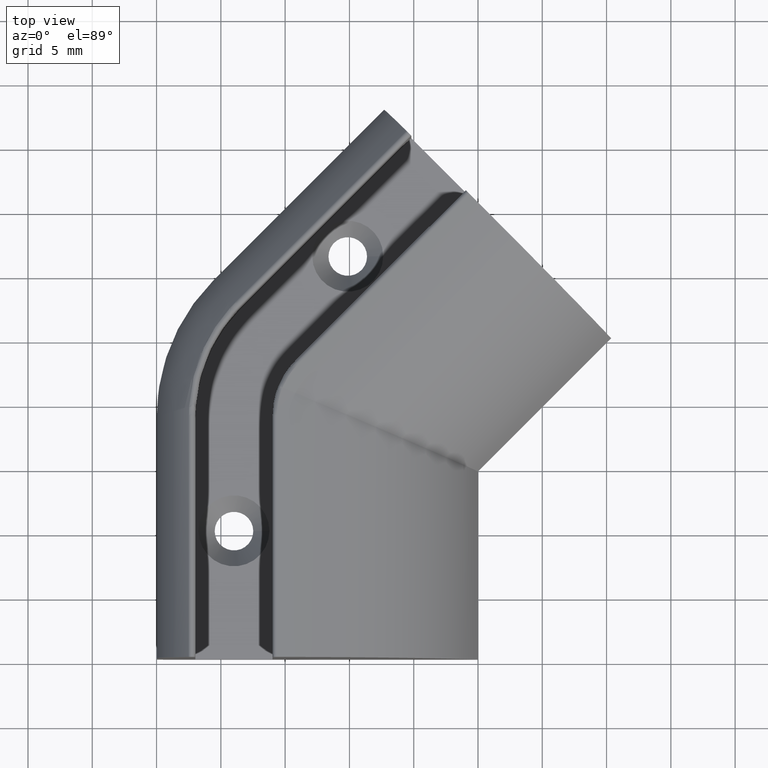
[diagram: clean part render]
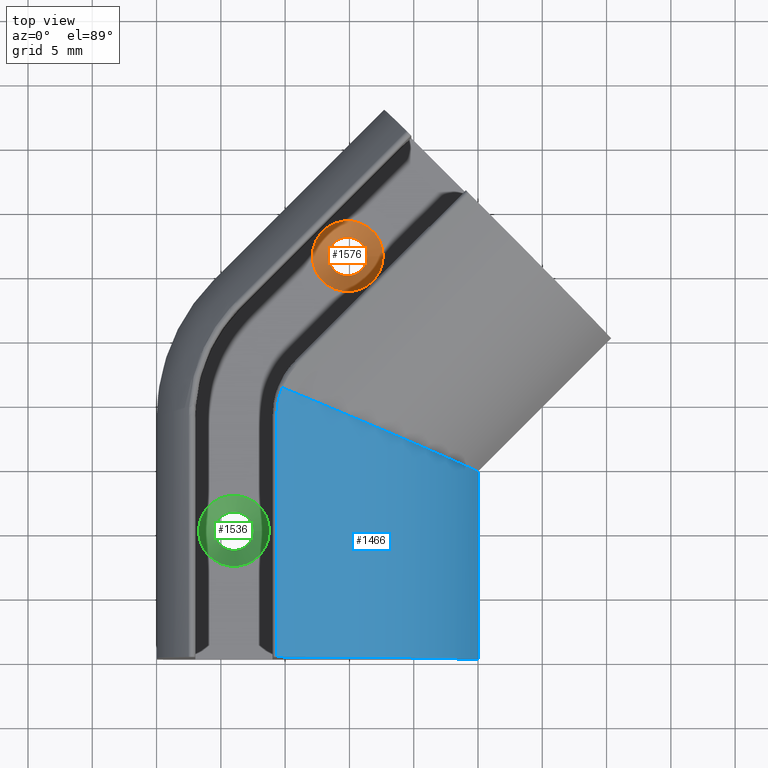
[diagram: same view with three faces highlighted in distinct colors, each labeled with its STEP entity id]
A machine part, top view with three faces highlighted in distinct colors.
Their STEP definitions:

[orange] entity #1576 — the highlighted face is a freeform B-spline surface patch.
#324=CARTESIAN_POINT('',(-11.629849421591217,16.716966149286378,-4.440892E-015));
#325=VERTEX_POINT('',#324);
#326=CARTESIAN_POINT('',(-8.629837421590736,16.716966149286378,-4.440892E-015));
#327=VERTEX_POINT('',#326);
#328=CARTESIAN_POINT('',(-10.129843421590977,16.716966149286378,-4.440892E-015));
#329=DIRECTION('',(0.0,0.0,-1.0));
#330=DIRECTION('',(1.0,0.0,0.0));
#331=AXIS2_PLACEMENT_3D('',#328,#329,#330);
#332=CIRCLE('',#331,1.500006000000241);
#333=EDGE_CURVE('',#325,#327,#332,.T.);
#335=CARTESIAN_POINT('',(-10.129843421590977,16.716966149286378,-4.440892E-015));
#336=DIRECTION('',(0.0,0.0,-1.0));
#337=DIRECTION('',(1.0,0.0,0.0));
#338=AXIS2_PLACEMENT_3D('',#335,#336,#337);
#339=CIRCLE('',#338,1.500006000000241);
#340=EDGE_CURVE('',#327,#325,#339,.T.);
#438=CARTESIAN_POINT('',(-7.371189233474411,16.716966149286378,1.499998499999820));
#439=VERTEX_POINT('',#438);
#440=CARTESIAN_POINT('',(-12.888497609707542,16.716966149286378,1.499998499999820));
#441=VERTEX_POINT('',#440);
#442=CARTESIAN_POINT('',(-10.129843421590977,16.716966149286378,1.499998499999820));
#443=DIRECTION('',(0.0,0.0,-1.0));
#444=DIRECTION('',(1.0,0.0,0.0));
#445=AXIS2_PLACEMENT_3D('',#442,#443,#444);
#446=CIRCLE('',#445,2.758654188116566);
#447=EDGE_CURVE('',#439,#441,#446,.T.);
#449=CARTESIAN_POINT('',(-10.129843421590977,16.716966149286378,1.499998499999820));
#450=DIRECTION('',(0.0,0.0,-1.0));
#451=DIRECTION('',(1.0,0.0,0.0));
#452=AXIS2_PLACEMENT_3D('',#449,#450,#451);
#453=CIRCLE('',#452,2.758654188116566);
#454=EDGE_CURVE('',#441,#439,#453,.T.);
#1537=CARTESIAN_POINT('',(-8.629837421601131,16.716966149286378,-1.239231E-011));
#1538=CARTESIAN_POINT('',(-8.629837421601131,15.216960149296533,-1.239231E-011));
#1539=CARTESIAN_POINT('',(-10.129843421590977,15.216960149296533,-1.239231E-011));
#1540=CARTESIAN_POINT('',(-11.629849421580822,15.216960149296533,-1.239231E-011));
#1541=CARTESIAN_POINT('',(-11.629849421580822,16.716966149286378,-1.239231E-011));
#1542=CARTESIAN_POINT('',(-11.629849421580822,18.216972149276224,-1.239231E-011));
#1543=CARTESIAN_POINT('',(-10.129843421590977,18.216972149276224,-1.239231E-011));
#1544=CARTESIAN_POINT('',(-8.629837421601131,18.216972149276224,-1.239231E-011));
#1545=CARTESIAN_POINT('',(-8.629837421601131,16.716966149286378,-1.239231E-011));
#1546=CARTESIAN_POINT('',(-7.371189233474411,16.716966149286378,1.499998499999820));
#1547=CARTESIAN_POINT('',(-7.371189233474411,13.958311961169811,1.499998499999820));
#1548=CARTESIAN_POINT('',(-10.129843421590977,13.958311961169812,1.499998499999820));
#1549=CARTESIAN_POINT('',(-12.888497609707544,13.958311961169811,1.499998499999820));
#1550=CARTESIAN_POINT('',(-12.888497609707542,16.716966149286378,1.499998499999820));
#1551=CARTESIAN_POINT('',(-12.888497609707544,19.475620337402944,1.499998499999820));
#1552=CARTESIAN_POINT('',(-10.129843421590977,19.475620337402944,1.499998499999820));
#1553=CARTESIAN_POINT('',(-7.371189233474411,19.475620337402944,1.499998499999820));
#1554=CARTESIAN_POINT('',(-7.371189233474411,16.716966149286378,1.499998499999820));
#1562=(BOUNDED_SURFACE()B_SPLINE_SURFACE(2,1,((#1537,#1546),(#1538,#1547),(#1539,#1548),(#1540,#1549),(#1541,#1550),(#1542,#1551),(#1543,#1552),(#1544,#1553),(#1545,#1554)),.UNSPECIFIED.,.T.,.F.,.U.)B_SPLINE_SURFACE_WITH_KNOTS((3,2,2,2,3),(2,2),(0.0,0.250000000000000,0.500000000000000,0.750000000000000,1.0),(-1.958108975903426,0.0),.UNSPECIFIED.)GEOMETRIC_REPRESENTATION_ITEM()RATIONAL_B_SPLINE_SURFACE(((1.0,1.0),(0.707106781186548,0.707106781186548),(1.0,1.0),(0.707106781186548,0.707106781186548),(1.0,1.0),(0.707106781186548,0.707106781186548),(1.0,1.0),(0.707106781186548,0.707106781186548),(1.0,1.0)))REPRESENTATION_ITEM('')SURFACE());
#1563=CARTESIAN_POINT('',(-8.629837421590736,16.716966149286378,-3.996803E-015));
#1564=DIRECTION('',(0.642787609686539,0.0,0.766044443118978));
#1565=VECTOR('',#1564,1.958108975887254);
#1566=LINE('',#1563,#1565);
#1567=EDGE_CURVE('',#327,#439,#1566,.T.);
#1568=ORIENTED_EDGE('',*,*,#1567,.T.);
#1569=ORIENTED_EDGE('',*,*,#454,.F.);
#1570=ORIENTED_EDGE('',*,*,#447,.F.);
#1571=ORIENTED_EDGE('',*,*,#1567,.F.);
#1572=ORIENTED_EDGE('',*,*,#340,.T.);
#1573=ORIENTED_EDGE('',*,*,#333,.T.);
#1574=EDGE_LOOP('',(#1568,#1569,#1570,#1571,#1572,#1573));
#1575=FACE_OUTER_BOUND('',#1574,.T.);
#1576=ADVANCED_FACE('',(#1575),#1562,.T.);

[blue] entity #1466 — the highlighted cylindrical surface (partial cylindrical patch) has radius 17.7 mm, axis along (0, -1, 0).
#280=CARTESIAN_POINT('',(0.0,0.0,0.0));
#281=VERTEX_POINT('',#280);
#288=CARTESIAN_POINT('',(0.0,-14.646994881391919,0.0));
#289=VERTEX_POINT('',#288);
#290=CARTESIAN_POINT('',(0.0,-14.646994881391919,0.0));
#291=DIRECTION('',(0.0,1.0,0.0));
#292=VECTOR('',#291,14.646994881391922);
#293=LINE('',#290,#292);
#294=EDGE_CURVE('',#289,#281,#293,.T.);
#1140=CARTESIAN_POINT('',(-15.219739060737368,6.304222334736963,12.612332084763196));
#1141=VERTEX_POINT('',#1140);
#1238=CARTESIAN_POINT('',(-15.656675014813700,4.133473932065613,12.650517677420133));
#1239=VERTEX_POINT('',#1238);
#1247=CARTESIAN_POINT('',(-15.656675014813700,4.133473932065613,12.650517677420133));
#1248=CARTESIAN_POINT('',(-15.656675014813700,4.523713902137473,12.650517677420133));
#1249=CARTESIAN_POINT('',(-15.578821543301302,5.266184799704121,12.644968636634871));
#1250=CARTESIAN_POINT('',(-15.356088684565236,5.978783218412680,12.625952462197727));
#1251=CARTESIAN_POINT('',(-15.219739060737368,6.304222334736963,12.612332084763196));
#1252=B_SPLINE_CURVE_WITH_KNOTS('',3,(#1247,#1248,#1249,#1250,#1251),.UNSPECIFIED.,.F.,.U.,(4,1,4),(0.0,1.170719910215577,2.227368490735208),.UNSPECIFIED.);
#1253=EDGE_CURVE('',#1239,#1141,#1252,.T.);
#1336=CARTESIAN_POINT('',(-15.656675014813700,-14.646994881391919,12.650517677420133));
#1337=VERTEX_POINT('',#1336);
#1338=CARTESIAN_POINT('',(-16.979087826508366,-14.646994881391926,-4.999995000000255));
#1339=DIRECTION('',(0.0,-1.000000000000000,0.0));
#1340=DIRECTION('',(0.959271457944249,0.0,0.282485875706230));
#1341=AXIS2_PLACEMENT_3D('',#1338,#1339,#1340);
#1342=CIRCLE('',#1341,17.699982299999963);
#1343=EDGE_CURVE('',#289,#1337,#1342,.T.);
#1372=CARTESIAN_POINT('',(-15.656675014813700,-14.646994881391919,12.650517677420133));
#1373=DIRECTION('',(0.0,1.0,0.0));
#1374=VECTOR('',#1373,18.780468813457535);
#1375=LINE('',#1372,#1374);
#1376=EDGE_CURVE('',#1337,#1239,#1375,.T.);
#1416=CARTESIAN_POINT('',(-16.979087826508362,7.032968454463677,-4.999995000000253));
#1417=DIRECTION('',(0.382683432365089,0.923879532511287,0.0));
#1418=DIRECTION('',(-0.923879532511287,0.382683432365089,0.0));
#1419=AXIS2_PLACEMENT_3D('',#1416,#1417,#1418);
#1420=ELLIPSE('',#1419,19.158322786833384,17.699982299999963);
#1421=EDGE_CURVE('',#1141,#281,#1420,.T.);
#1454=CARTESIAN_POINT('',(-16.979087826508362,-14.646994881391919,-4.999995000000253));
#1455=DIRECTION('',(0.0,-1.0,0.0));
#1456=DIRECTION('',(0.959271457944249,0.0,0.282485875706230));
#1457=AXIS2_PLACEMENT_3D('',#1454,#1455,#1456);
#1458=CYLINDRICAL_SURFACE('',#1457,17.699982299999963);
#1459=ORIENTED_EDGE('',*,*,#1421,.F.);
#1460=ORIENTED_EDGE('',*,*,#1253,.F.);
#1461=ORIENTED_EDGE('',*,*,#1376,.F.);
#1462=ORIENTED_EDGE('',*,*,#1343,.F.);
#1463=ORIENTED_EDGE('',*,*,#294,.T.);
#1464=EDGE_LOOP('',(#1459,#1460,#1461,#1462,#1463));
#1465=FACE_OUTER_BOUND('',#1464,.T.);
#1466=ADVANCED_FACE('',(#1465),#1458,.T.);

[green] entity #1536 — the highlighted face is a freeform B-spline surface patch.
#304=CARTESIAN_POINT('',(-20.479091826508721,-4.646994881391919,-4.662937E-015));
#305=VERTEX_POINT('',#304);
#306=CARTESIAN_POINT('',(-17.479079826508240,-4.646994881391919,-3.552714E-015));
#307=VERTEX_POINT('',#306);
#308=CARTESIAN_POINT('',(-18.979085826508481,-4.646994881391919,-4.440892E-015));
#309=DIRECTION('',(1.480291E-016,0.0,-1.0));
#310=DIRECTION('',(1.0,0.0,1.480291E-016));
#311=AXIS2_PLACEMENT_3D('',#308,#309,#310);
#312=CIRCLE('',#311,1.500006000000241);
#313=EDGE_CURVE('',#305,#307,#312,.T.);
#315=CARTESIAN_POINT('',(-18.979085826508481,-4.646994881391919,-4.440892E-015));
#316=DIRECTION('',(1.480291E-016,0.0,-1.0));
#317=DIRECTION('',(1.0,0.0,1.480291E-016));
#318=AXIS2_PLACEMENT_3D('',#315,#316,#317);
#319=CIRCLE('',#318,1.500006000000241);
#320=EDGE_CURVE('',#307,#305,#319,.T.);
#418=CARTESIAN_POINT('',(-16.220431638391915,-4.646994881391919,1.499998499999820));
#419=VERTEX_POINT('',#418);
#420=CARTESIAN_POINT('',(-21.737740014625047,-4.646994881391919,1.499998499999820));
#421=VERTEX_POINT('',#420);
#422=CARTESIAN_POINT('',(-18.979085826508481,-4.646994881391919,1.499998499999820));
#423=DIRECTION('',(0.0,0.0,-1.0));
#424=DIRECTION('',(1.0,0.0,0.0));
#425=AXIS2_PLACEMENT_3D('',#422,#423,#424);
#426=CIRCLE('',#425,2.758654188116566);
#427=EDGE_CURVE('',#419,#421,#426,.T.);
#429=CARTESIAN_POINT('',(-18.979085826508481,-4.646994881391919,1.499998499999820));
#430=DIRECTION('',(0.0,0.0,-1.0));
#431=DIRECTION('',(1.0,0.0,0.0));
#432=AXIS2_PLACEMENT_3D('',#429,#430,#431);
#433=CIRCLE('',#432,2.758654188116566);
#434=EDGE_CURVE('',#421,#419,#433,.T.);
#1497=CARTESIAN_POINT('',(-17.479079826518635,-4.646994881391919,-1.239231E-011));
#1498=CARTESIAN_POINT('',(-17.479079826518635,-6.147000881381764,-1.239231E-011));
#1499=CARTESIAN_POINT('',(-18.979085826508481,-6.147000881381764,-1.239231E-011));
#1500=CARTESIAN_POINT('',(-20.479091826498326,-6.147000881381764,-1.239231E-011));
#1501=CARTESIAN_POINT('',(-20.479091826498326,-4.646994881391919,-1.239231E-011));
#1502=CARTESIAN_POINT('',(-20.479091826498326,-3.146988881402073,-1.239231E-011));
#1503=CARTESIAN_POINT('',(-18.979085826508481,-3.146988881402073,-1.239231E-011));
#1504=CARTESIAN_POINT('',(-17.479079826518635,-3.146988881402073,-1.239231E-011));
#1505=CARTESIAN_POINT('',(-17.479079826518635,-4.646994881391919,-1.239231E-011));
#1506=CARTESIAN_POINT('',(-16.220431638391915,-4.646994881391919,1.499998499999820));
#1507=CARTESIAN_POINT('',(-16.220431638391915,-7.405649069508486,1.499998499999820));
#1508=CARTESIAN_POINT('',(-18.979085826508481,-7.405649069508485,1.499998499999820));
#1509=CARTESIAN_POINT('',(-21.737740014625047,-7.405649069508486,1.499998499999820));
#1510=CARTESIAN_POINT('',(-21.737740014625047,-4.646994881391919,1.499998499999820));
#1511=CARTESIAN_POINT('',(-21.737740014625047,-1.888340693275353,1.499998499999820));
#1512=CARTESIAN_POINT('',(-18.979085826508481,-1.888340693275353,1.499998499999820));
#1513=CARTESIAN_POINT('',(-16.220431638391915,-1.888340693275353,1.499998499999820));
#1514=CARTESIAN_POINT('',(-16.220431638391915,-4.646994881391919,1.499998499999820));
#1522=(BOUNDED_SURFACE()B_SPLINE_SURFACE(2,1,((#1497,#1506),(#1498,#1507),(#1499,#1508),(#1500,#1509),(#1501,#1510),(#1502,#1511),(#1503,#1512),(#1504,#1513),(#1505,#1514)),.UNSPECIFIED.,.T.,.F.,.U.)B_SPLINE_SURFACE_WITH_KNOTS((3,2,2,2,3),(2,2),(0.0,0.250000000000000,0.500000000000000,0.750000000000000,1.0),(-1.958108975903426,0.0),.UNSPECIFIED.)GEOMETRIC_REPRESENTATION_ITEM()RATIONAL_B_SPLINE_SURFACE(((1.0,1.0),(0.707106781186548,0.707106781186548),(1.0,1.0),(0.707106781186548,0.707106781186548),(1.0,1.0),(0.707106781186548,0.707106781186548),(1.0,1.0),(0.707106781186548,0.707106781186548),(1.0,1.0)))REPRESENTATION_ITEM('')SURFACE());
#1523=CARTESIAN_POINT('',(-17.479079826508240,-4.646994881391919,-3.774758E-015));
#1524=DIRECTION('',(0.642787609686539,0.0,0.766044443118978));
#1525=VECTOR('',#1524,1.958108975887254);
#1526=LINE('',#1523,#1525);
#1527=EDGE_CURVE('',#307,#419,#1526,.T.);
#1528=ORIENTED_EDGE('',*,*,#1527,.T.);
#1529=ORIENTED_EDGE('',*,*,#434,.F.);
#1530=ORIENTED_EDGE('',*,*,#427,.F.);
#1531=ORIENTED_EDGE('',*,*,#1527,.F.);
#1532=ORIENTED_EDGE('',*,*,#320,.T.);
#1533=ORIENTED_EDGE('',*,*,#313,.T.);
#1534=EDGE_LOOP('',(#1528,#1529,#1530,#1531,#1532,#1533));
#1535=FACE_OUTER_BOUND('',#1534,.T.);
#1536=ADVANCED_FACE('',(#1535),#1522,.T.);